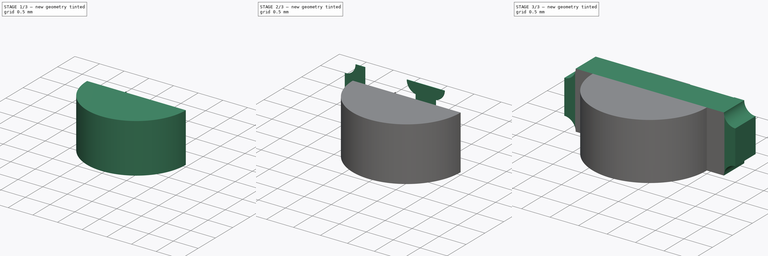
[diagram: build sequence overview — one tinted view per stage of 3, left to right]
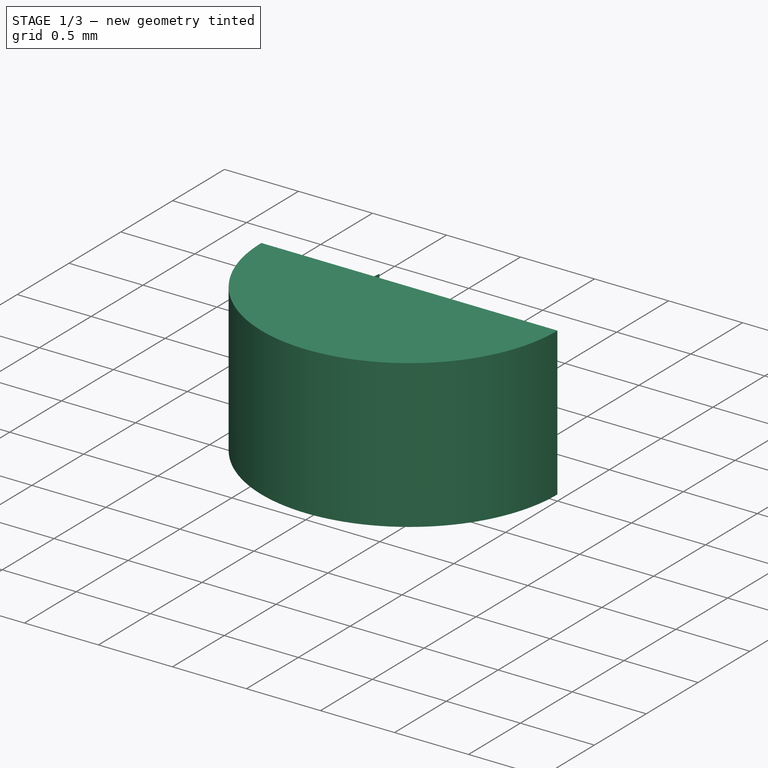
[diagram: stage 1 of 3 — iso view after this stage's code; geometry added in this stage tinted green]
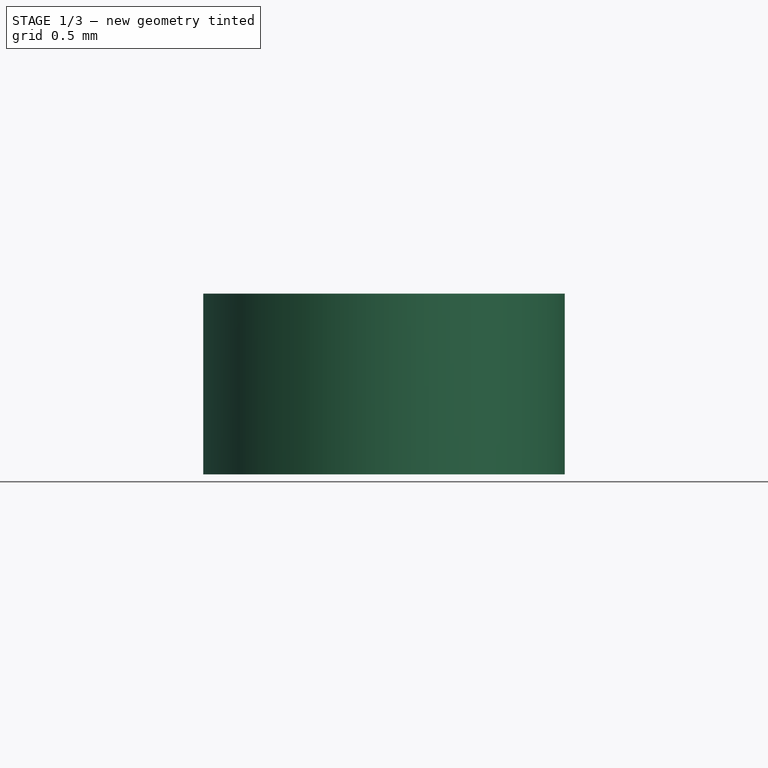
[diagram: stage 1 of 3 — front view after this stage's code; geometry added in this stage tinted green]
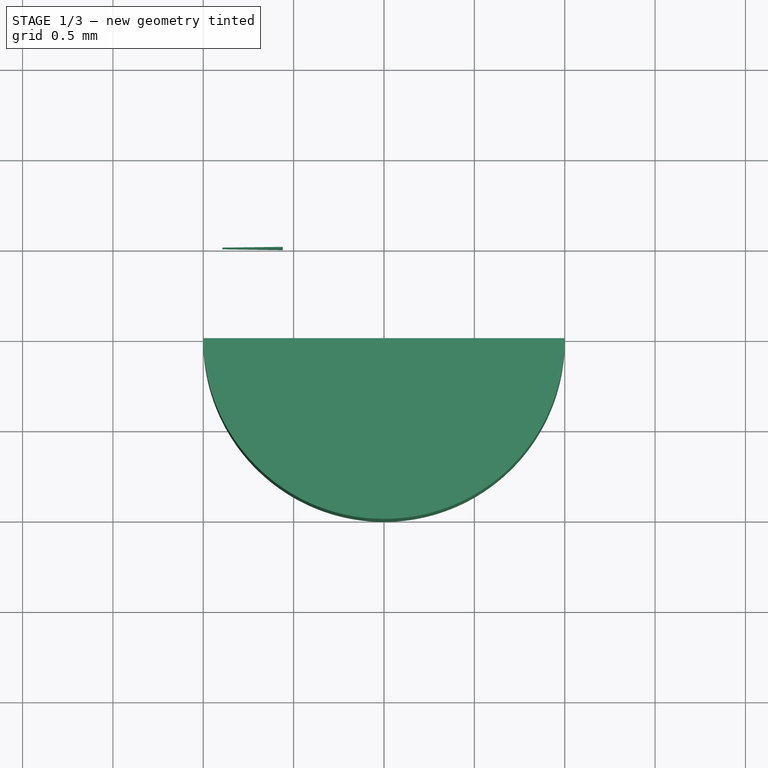
[diagram: stage 1 of 3 — top view after this stage's code; geometry added in this stage tinted green]
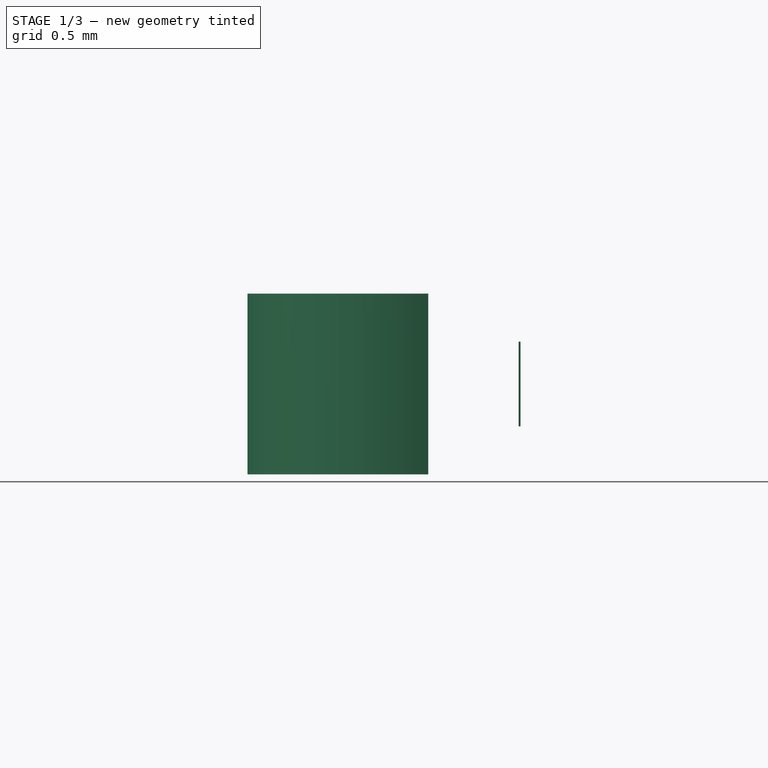
[diagram: stage 1 of 3 — right view after this stage's code; geometry added in this stage tinted green]
FCSTD DOCUMENT  (FreeCAD 1.0R39285 (Git))
Label: LED_Green_MEIHUA_MHS110UGCT_Horizontal
License: All rights reserved
LicenseURL: https://en.wikipedia.org/wiki/All_rights_reserved
objects: Sketcher::SketchObject×5, PartDesign::Pad×5, PartDesign::Body×5, PartDesign::ShapeBinder×4, PartDesign::Plane×4, Part::Mirroring×1
note: 39 computed .brp shape members not serialized (recipe doc carries the construction recipe); baked Part::Feature solids carry a one-line shape summary decoded from their .brp

FEATURE [PartDesign::Body] Body002
  AllowCompound = false
  Group = -> [DatumPlane001,CopyCopyPad,Sketch002,Pad002]
  Origin = -> Origin002
  Tip = -> Pad002
FEATURE [PartDesign::ShapeBinder] CopyCopyPad001
  TraceSupport = false
FEATURE [PartDesign::Plane] DatumPlane002
  AttachmentSupport = -> [CopyCopyPad001]
  Length = 60
  MapMode = 5
  Placement = pos=(0,0,0) rot=(0,0.707107,0.707107;3.14159rad)
  ResizeMode = 0
  Width = 60
FEATURE [Sketcher::SketchObject] Sketch003
  ArcFitTolerance = 1e-06
  AttachmentSupport = -> [DatumPlane002]
  FullyConstrained = false
  MakeInternals = false
  MapMode = 5
  Placement = pos=(0,0,0) rot=(0,0.707107,0.707107;3.14159rad)
  sketch-geometry (3):
    g0: LineSegment StartX=0.560079 StartY=0.234406 StartZ=0 EndX=0.560079 EndY=-0.234406 EndZ=0
    g1: LineSegment StartX=0.560079 StartY=-0.234406 StartZ=0 EndX=0.894275 EndY=0 EndZ=0
    g2: LineSegment StartX=0.894275 StartY=0 StartZ=0 EndX=0.560079 EndY=0.234406 EndZ=0
  constraints (5):
    c: Coincident(g1,g0)
    c: Coincident(g2,g0)
    c: Symmetric(g0,g0,g-1)
    c: Coincident(g1,g2)
    c: PointOnObject(g1,g-1)
FEATURE [PartDesign::Pad] Pad003
  Direction = (0,1,-2e-16)
  Length = 0.01
  Length2 = 10
  Placement = pos=(0,0,0) rot=(0,0.707107,0.707107;3.14159rad)
  Profile = -> Sketch003
  ReferenceAxis = -> Sketch003 [N_Axis]
  Refine = true
  Suppressed = false
  Type = 0
FEATURE [PartDesign::Body] Body003
  AllowCompound = false
  Group = -> [DatumPlane002,CopyCopyPad001,Sketch003,Pad003]
  Origin = -> Origin003
  Tip = -> Pad003
FEATURE [PartDesign::ShapeBinder] CopyPad001
  Placement = pos=(0,0,0) rot=(1,0,0;1.5708rad)
  TraceSupport = false
FEATURE [PartDesign::Plane] DatumPlane003
  AttachmentSupport = -> [CopyPad001]
  Length = 60
  MapMode = 5
  Placement = pos=(0,-3e-16,-0.5) rot=(1,0,0;3.14159rad)
  ResizeMode = 0
  Width = 60
FEATURE [Sketcher::SketchObject] Sketch004
  ArcFitTolerance = 1e-06
  AttachmentSupport = -> [DatumPlane003]
  FullyConstrained = true
  MakeInternals = false
  MapMode = 5
  Placement = pos=(0,-3e-16,-0.5) rot=(1,0,0;3.14159rad)
  sketch-geometry (2):
    g0: ArcOfCircle CenterX=0 CenterY=0.5 CenterZ=0 NormalX=0 NormalY=0 NormalZ=1 AngleXU=0 Radius=1 StartAngle=6.28319 EndAngle=9.42478
    g1: LineSegment StartX=-1 StartY=0.5 StartZ=0 EndX=1 EndY=0.5 EndZ=0
  constraints (6):
    c: Radius(g0) = 1
    c: Angle(g0) = 3.14159
    c: Symmetric(g-2,g-2,g0)
    c: Coincident(g1,g0)
    c: Coincident(g1,g0)
    c: Horizontal(g1)
FEATURE [PartDesign::Pad] Pad004
  Direction = (0,0,-1)
  Length = 1
  Length2 = 10
  Placement = pos=(0,-3e-16,-0.5) rot=(1,0,0;3.14159rad)
  Profile = -> Sketch004
  ReferenceAxis = -> Sketch004 [N_Axis]
  Refine = true
  Reversed = true
  Suppressed = false
  Type = 0
FEATURE [PartDesign::Body] Body004
  AllowCompound = false
  Group = -> [DatumPlane003,CopyPad001,Sketch004,Pad004]
  Origin = -> Origin004
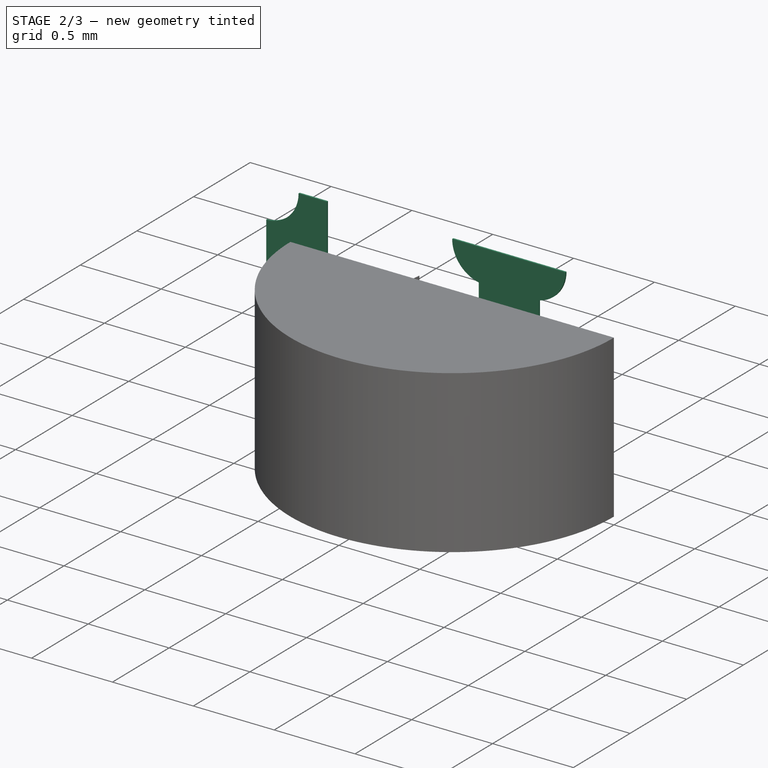
[diagram: stage 2 of 3 — iso view after this stage's code; geometry added in this stage tinted green]
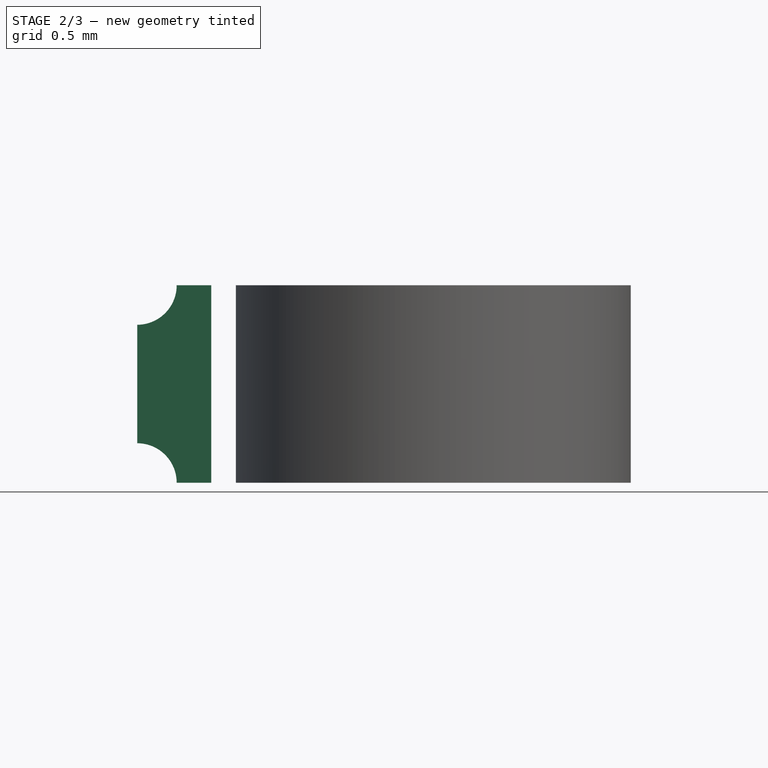
[diagram: stage 2 of 3 — front view after this stage's code; geometry added in this stage tinted green]
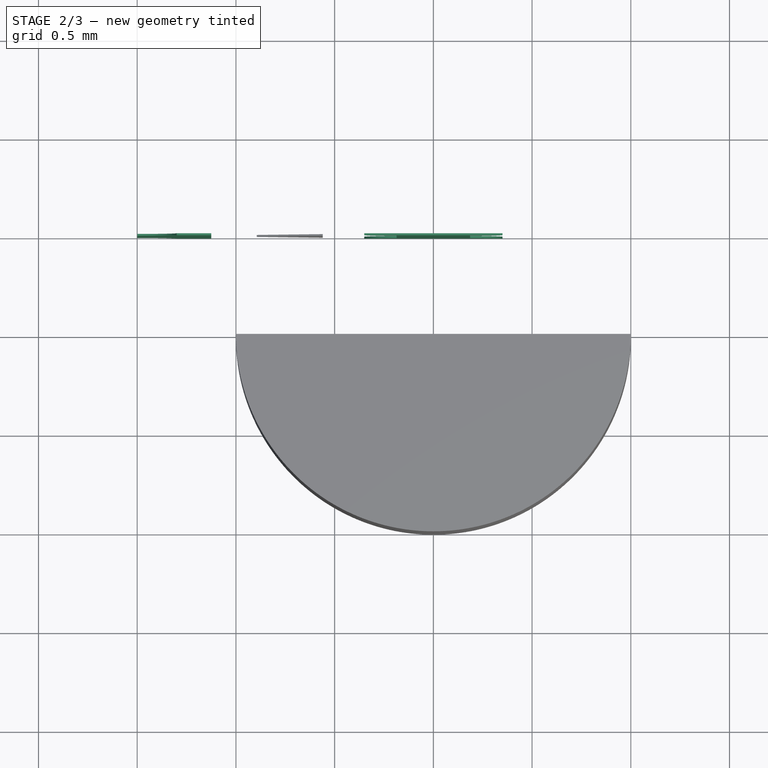
[diagram: stage 2 of 3 — top view after this stage's code; geometry added in this stage tinted green]
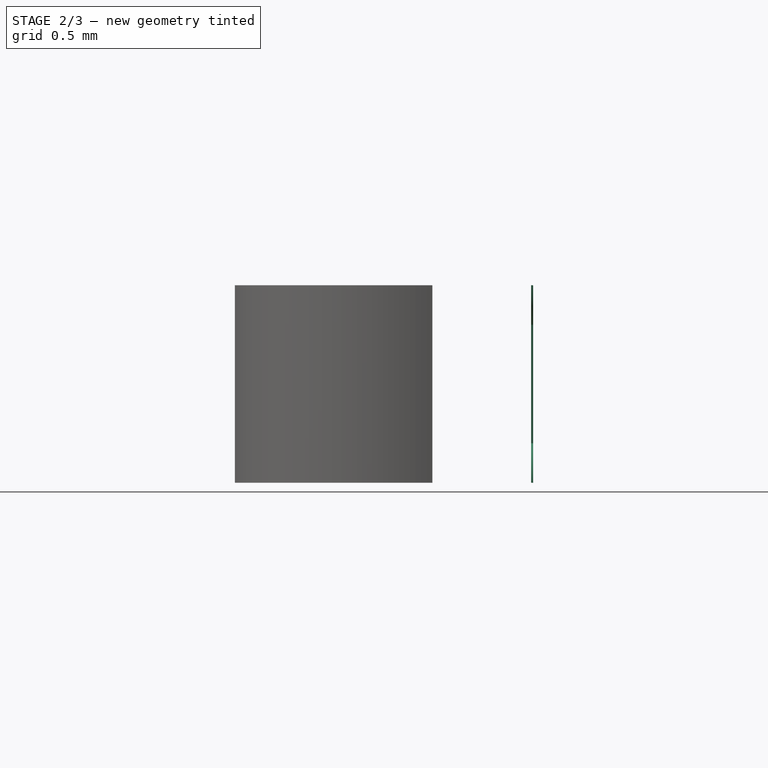
[diagram: stage 2 of 3 — right view after this stage's code; geometry added in this stage tinted green]
FEATURE [PartDesign::Body] Body
  AllowCompound = false
  Group = -> [Sketch,Pad]
  Origin = -> Origin
  Tip = -> Pad
FEATURE [PartDesign::ShapeBinder] CopyPad
  TraceSupport = false
FEATURE [PartDesign::Plane] DatumPlane
  AttachmentSupport = -> [CopyPad]
  Length = 60
  MapMode = 5
  Placement = pos=(0,0,0) rot=(0,0.707107,0.707107;3.14159rad)
  ResizeMode = 0
  Width = 60
FEATURE [Sketcher::SketchObject] Sketch001
  ArcFitTolerance = 1e-06
  AttachmentSupport = -> [DatumPlane]
  ExternalGeometry = -> [CopyPad]
  FullyConstrained = false
  MakeInternals = false
  MapMode = 5
  Placement = pos=(0,0,0) rot=(0,0.707107,0.707107;3.14159rad)
  sketch-geometry (8):
    g0: LineSegment StartX=1.125 StartY=0.5 StartZ=0 EndX=1.125 EndY=0 EndZ=0
    g1: LineSegment StartX=1.125 StartY=0.5 StartZ=0 EndX=1.3 EndY=0.5 EndZ=0
    g2: ArcOfCircle CenterX=1.5 CenterY=0.5 CenterZ=0 NormalX=0 NormalY=0 NormalZ=1 AngleXU=0 Radius=0.2 StartAngle=3.14159 EndAngle=4.71239
    g3: LineSegment StartX=1.5 StartY=0.3 StartZ=0 EndX=1.5 EndY=0 EndZ=0
    g4: LineSegment StartX=1.125 StartY=-0.5 StartZ=0 EndX=1.125 EndY=0 EndZ=0
    g5: LineSegment StartX=1.125 StartY=-0.5 StartZ=0 EndX=1.3 EndY=-0.5 EndZ=0
    g6: ArcOfCircle CenterX=1.5 CenterY=-0.5 CenterZ=0 NormalX=0 NormalY=0 NormalZ=1 AngleXU=0 Radius=0.2 StartAngle=1.5708 EndAngle=3.14159
    g7: LineSegment StartX=1.5 StartY=-0.3 StartZ=0 EndX=1.5 EndY=0 EndZ=0
  constraints (16):
    c: PointOnObject(g0,g-3)
    c: PointOnObject(g0,g-1)
    c: Vertical(g0)
    c: Coincident(g1,g0)
    c: Coincident(g1,g-4)
    c: Coincident(g2,g-4)
    c: Coincident(g2,g1)
    c: Coincident(g3,g2)
    c: Symmetric(g-5,g-5,g3)
    c: DistanceX(g0,g2) = 0.375
    c: Vertical(g3)
    c: Vertical(g4)
    c: Coincident(g5,g4)
    c: Coincident(g6,g5)
    c: Coincident(g7,g6)
    c: Vertical(g7)
FEATURE [PartDesign::Pad] Pad001
  Direction = (0,1,-2e-16)
  Length = 0.01
  Length2 = 10
  Placement = pos=(0,0,0) rot=(0,0.707107,0.707107;3.14159rad)
  Profile = -> Sketch001
  ReferenceAxis = -> Sketch001 [N_Axis]
  Refine = true
  Suppressed = false
  Type = 0
FEATURE [PartDesign::ShapeBinder] CopyCopyPad
  TraceSupport = false
FEATURE [PartDesign::Plane] DatumPlane001
  AttachmentSupport = -> [CopyCopyPad]
  Length = 60
  MapMode = 5
  Placement = pos=(0,0,0) rot=(0,0.707107,0.707107;3.14159rad)
  ResizeMode = 0
  Width = 60
FEATURE [Sketcher::SketchObject] Sketch002
  ArcFitTolerance = 1e-06
  AttachmentSupport = -> [DatumPlane001]
  FullyConstrained = false
  MakeInternals = false
  MapMode = 5
  Placement = pos=(0,0,0) rot=(0,0.707107,0.707107;3.14159rad)
  sketch-geometry (12):
    g0: LineSegment StartX=0 StartY=0.5 StartZ=0 EndX=0.35 EndY=0.5 EndZ=0
    g1: LineSegment StartX=0.186191 StartY=0 StartZ=0 EndX=0.186191 EndY=0.3 EndZ=0
    g2: ArcOfCircle CenterX=0.145379 CenterY=0.50051 CenterZ=0 NormalX=0 NormalY=0 NormalZ=1 AngleXU=0 Radius=0.204622 StartAngle=4.91319 EndAngle=6.28069
    g3: LineSegment StartX=0 StartY=0.5 StartZ=0 EndX=-0.35 EndY=0.5 EndZ=0
    g4: LineSegment StartX=-0.186191 StartY=0 StartZ=0 EndX=-0.186191 EndY=0.3 EndZ=0
    g5: ArcOfCircle CenterX=-0.145379 CenterY=0.50051 CenterZ=0 NormalX=0 NormalY=0 NormalZ=1 AngleXU=0 Radius=0.204622 StartAngle=3.14409 EndAngle=4.51159
    g6: LineSegment StartX=0 StartY=-0.5 StartZ=0 EndX=0.35 EndY=-0.5 EndZ=0
    g7: LineSegment StartX=0.186191 StartY=0 StartZ=0 EndX=0.186191 EndY=-0.3 EndZ=0
    g8: ArcOfCircle CenterX=0.145379 CenterY=-0.50051 CenterZ=0 NormalX=0 NormalY=0 NormalZ=1 AngleXU=0 Radius=0.204622 StartAngle=0.00249418 EndAngle=1.37
    g9: LineSegment StartX=0 StartY=-0.5 StartZ=0 EndX=-0.35 EndY=-0.5 EndZ=0
    g10: LineSegment StartX=-0.186191 StartY=0 StartZ=0 EndX=-0.186191 EndY=-0.3 EndZ=0
    g11: ArcOfCircle CenterX=-0.145379 CenterY=-0.50051 CenterZ=0 NormalX=0 NormalY=0 NormalZ=1 AngleXU=0 Radius=0.204622 StartAngle=1.77159 EndAngle=3.1391
  constraints (23):
    c: Distance(g0) = 0.35
    c: Symmetric(g-2,g-2,g0)
    c: Horizontal(g0)
    c: PointOnObject(g1,g-1)
    c: Vertical(g1)
    c: Coincident(g2,g0)
    c: Coincident(g1,g2)
    c: DistanceY(g1,g1) = 0.3
    c: Distance(g3) = 0.35
    c: Horizontal(g3)
    c: Vertical(g4)
    c: Coincident(g5,g3)
    c: Coincident(g4,g5)
    c: Distance(g6) = 0.35
    c: Horizontal(g6)
    c: Vertical(g7)
    c: Coincident(g8,g6)
    c: Coincident(g7,g8)
    c: Distance(g9) = 0.35
    c: Horizontal(g9)
    c: Vertical(g10)
    c: Coincident(g11,g9)
    c: Coincident(g10,g11)
FEATURE [PartDesign::Pad] Pad002
  Direction = (0,1,-2e-16)
  Length = 0.01
  Length2 = 10
  Placement = pos=(0,0,0) rot=(0,0.707107,0.707107;3.14159rad)
  Profile = -> Sketch002
  ReferenceAxis = -> Sketch002 [N_Axis]
  Refine = true
  Suppressed = false
  Type = 0
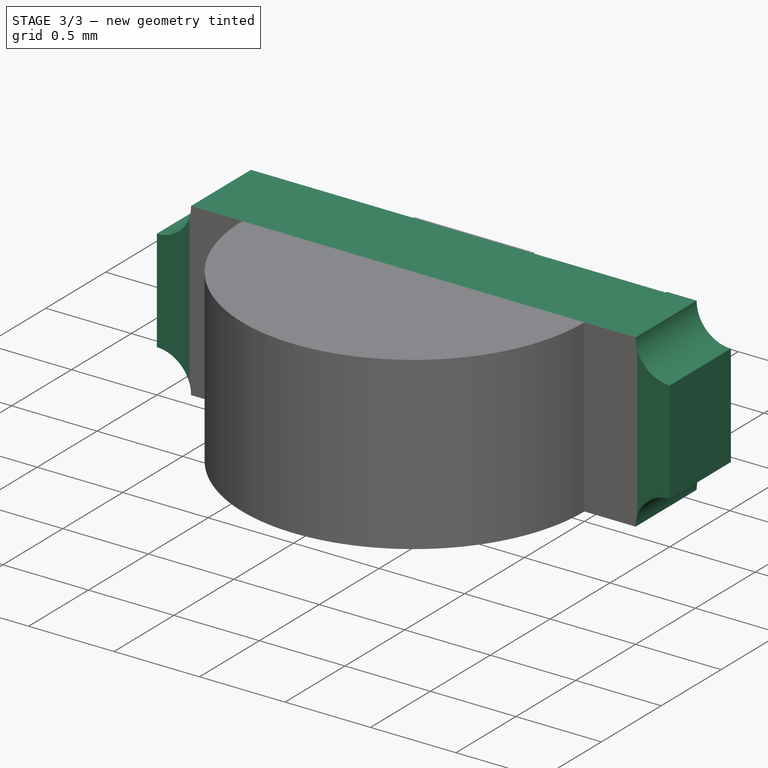
[diagram: stage 3 of 3 — iso view after this stage's code; geometry added in this stage tinted green]
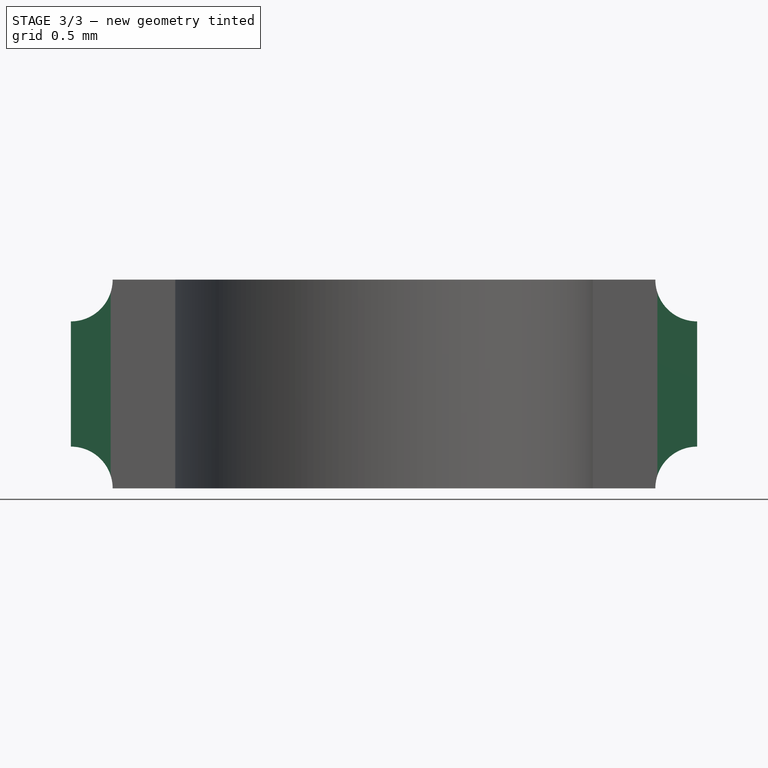
[diagram: stage 3 of 3 — front view after this stage's code; geometry added in this stage tinted green]
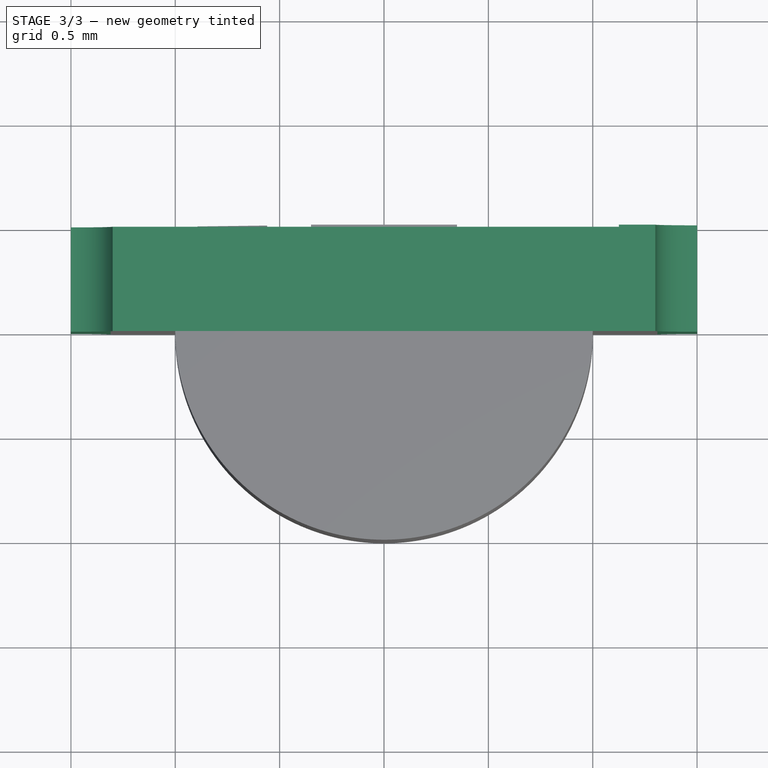
[diagram: stage 3 of 3 — top view after this stage's code; geometry added in this stage tinted green]
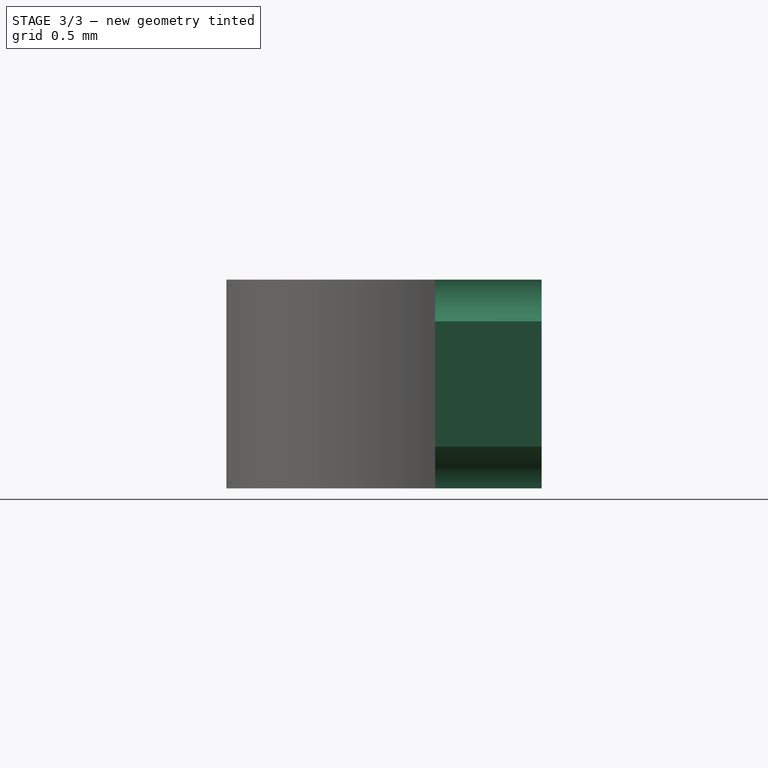
[diagram: stage 3 of 3 — right view after this stage's code; geometry added in this stage tinted green]
FEATURE [Sketcher::SketchObject] Sketch
  ArcFitTolerance = 1e-06
  AttachmentSupport = -> [XZ_Plane]
  FullyConstrained = false
  MakeInternals = false
  MapMode = 5
  Placement = pos=(0,0,0) rot=(1,0,0;1.5708rad)
  sketch-geometry (12):
    g0: LineSegment StartX=0 StartY=0.5 StartZ=0 EndX=-1.3 EndY=0.5 EndZ=0
    g1: LineSegment StartX=-1.5 StartY=0.3 StartZ=0 EndX=-1.5 EndY=0 EndZ=0
    g2: ArcOfCircle CenterX=-1.5 CenterY=0.5 CenterZ=0 NormalX=0 NormalY=0 NormalZ=1 AngleXU=0 Radius=0.2 StartAngle=4.71239 EndAngle=6.28319
    g3: LineSegment StartX=0 StartY=0.5 StartZ=0 EndX=1.3 EndY=0.5 EndZ=0
    g4: LineSegment StartX=1.5 StartY=0.3 StartZ=0 EndX=1.5 EndY=0 EndZ=0
    g5: ArcOfCircle CenterX=1.5 CenterY=0.5 CenterZ=0 NormalX=0 NormalY=0 NormalZ=1 AngleXU=0 Radius=0.2 StartAngle=3.14159 EndAngle=4.71239
    g6: LineSegment StartX=0 StartY=-0.5 StartZ=0 EndX=1.3 EndY=-0.5 EndZ=0
    g7: LineSegment StartX=1.5 StartY=-0.3 StartZ=0 EndX=1.5 EndY=0 EndZ=0
    g8: ArcOfCircle CenterX=1.5 CenterY=-0.5 CenterZ=0 NormalX=0 NormalY=0 NormalZ=1 AngleXU=0 Radius=0.2 StartAngle=1.5708 EndAngle=3.14159
    g9: LineSegment StartX=0 StartY=-0.5 StartZ=0 EndX=-1.3 EndY=-0.5 EndZ=0
    g10: LineSegment StartX=-1.5 StartY=-0.3 StartZ=0 EndX=-1.5 EndY=0 EndZ=0
    g11: ArcOfCircle CenterX=-1.5 CenterY=-0.5 CenterZ=0 NormalX=0 NormalY=0 NormalZ=1 AngleXU=0 Radius=0.2 StartAngle=0 EndAngle=1.5708
  constraints (26):
    c: Horizontal(g0)
    c: Vertical(g1)
    c: Coincident(g2,g0)
    c: Coincident(g2,g1)
    c: PointOnObject(g0,g-2)
    c: PointOnObject(g1,g-1)
    c: Distance(g1,g-2) = 1.5
    c: Horizontal(g2,g0)
    c: Vertical(g2,g1)
    c: Distance(g0,g-1) = 0.5
    c: Radius(g2) = 0.2
    c: Horizontal(g3)
    c: Vertical(g4)
    c: Coincident(g5,g3)
    c: Coincident(g5,g4)
    c: Radius(g5) = 0.2
    c: Horizontal(g6)
    c: Vertical(g7)
    c: Coincident(g8,g6)
    c: Coincident(g8,g7)
    c: Radius(g8) = 0.2
    c: Horizontal(g9)
    c: Vertical(g10)
    c: Coincident(g11,g9)
    c: Coincident(g11,g10)
    c: Radius(g11) = 0.2
FEATURE [PartDesign::Pad] Pad
  Direction = (0,-1,2e-16)
  Length = 0.5
  Length2 = 10
  Placement = pos=(0,0,0) rot=(1,0,0;1.5708rad)
  Profile = -> Sketch
  ReferenceAxis = -> Sketch [N_Axis]
  Refine = true
  Suppressed = false
  Type = 0
FEATURE [PartDesign::Body] Body001
  AllowCompound = false
  Group = -> [DatumPlane,CopyPad,Sketch001,Pad001]
  Origin = -> Origin001
  Tip = -> Pad001
FEATURE [Part::Mirroring] Part__Mirroring  label="Body001 (Mirror #1)"
  Base = (0,0.005,0)
  Normal = (1,0,-1.19209e-07)
  Source = -> Body001
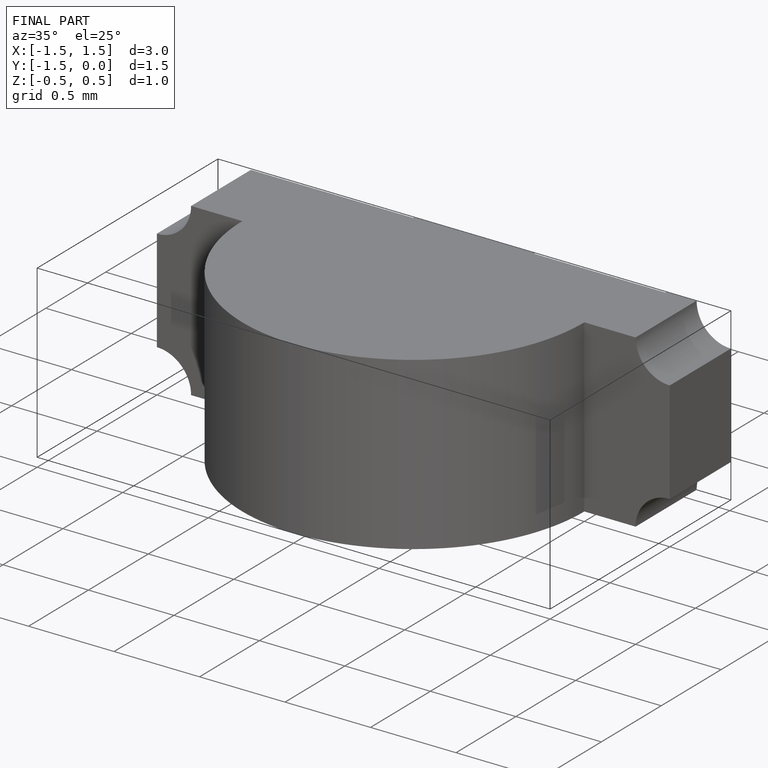
[diagram: finished part — iso view with bounding-box wireframe]
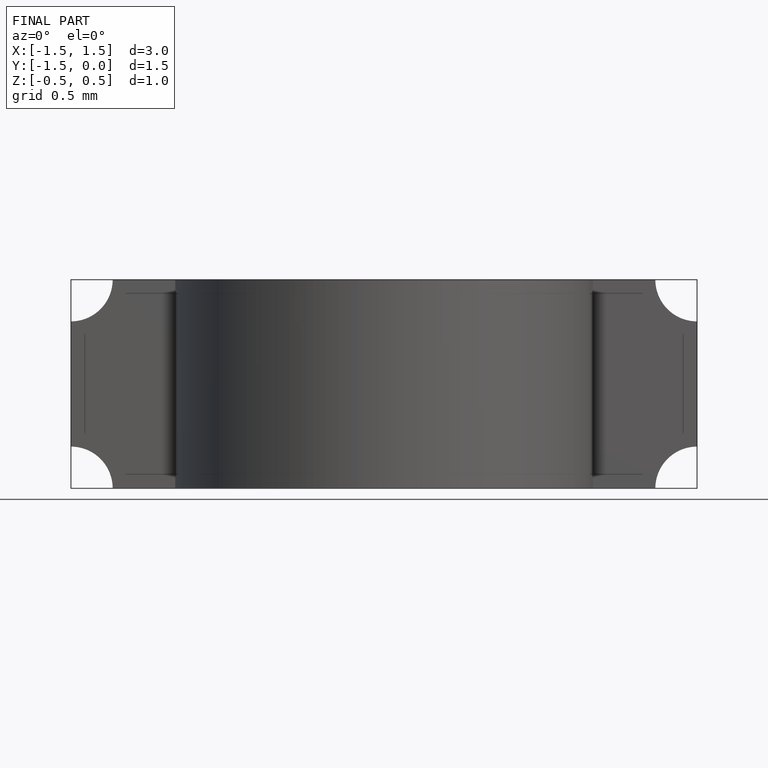
[diagram: finished part — front view with bounding-box wireframe]
